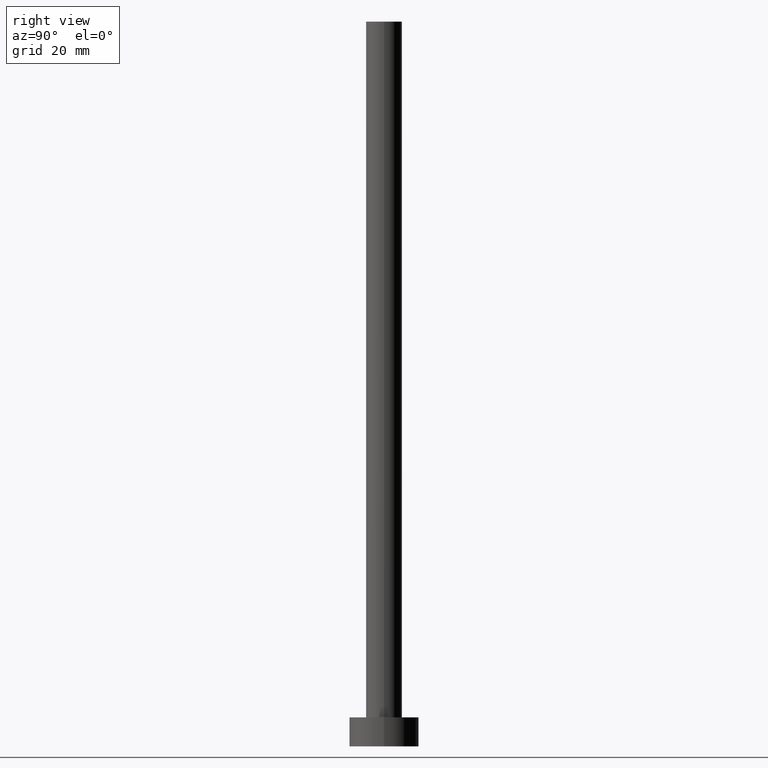
[diagram: clean part render]
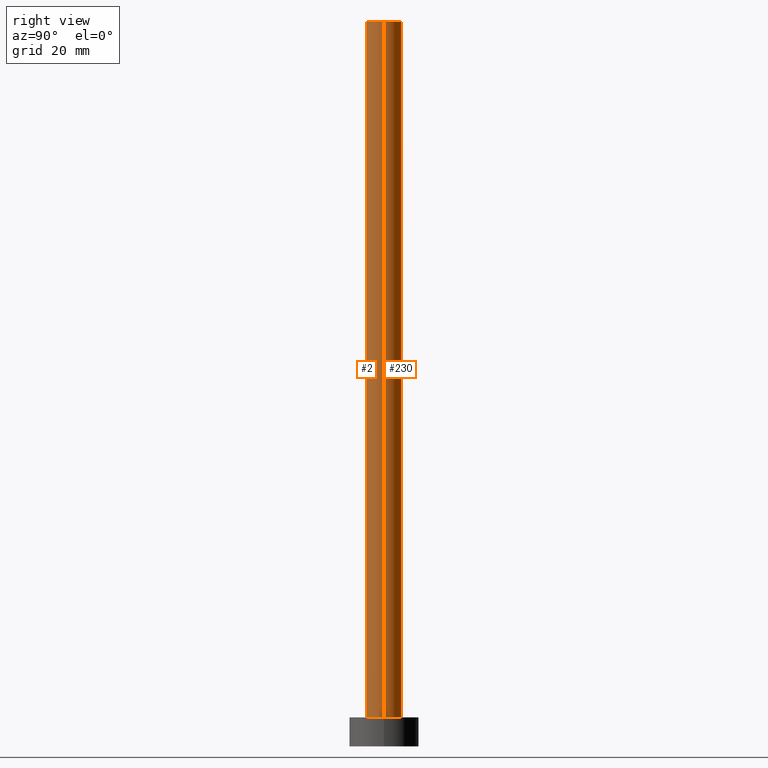
[diagram: same view with one multi-face feature highlighted, each face labeled with its STEP entity id]
A machine part, right view. The highlighted faces form ONE feature: a constant-radius fillet chain: 2 tangent blend faces with common blend radius 3.1 mm. The faces share edges in the B-rep.
Their STEP definitions:
[1] entity #230 (Cylinder):
#3 = DIRECTION ( 'NONE',  ( 1.000000000000000000, 0.000000000000000000, 0.000000000000000000 ) ) ;
#4 = CARTESIAN_POINT ( 'NONE',  ( -3.100000000000000089, 0.000000000000000000, 125.0000000000000000 ) ) ;
#16 = AXIS2_PLACEMENT_3D ( 'NONE', #182, #145, #3 ) ;
#22 = EDGE_CURVE ( 'NONE', #152, #255, #236, .T. ) ;
#41 = EDGE_LOOP ( 'NONE', ( #71, #206, #228, #121 ) ) ;
#46 = CARTESIAN_POINT ( 'NONE',  ( 3.100000000000000089, 3.796405077356794918E-16, 5.000000000000000000 ) ) ;
#47 = DIRECTION ( 'NONE',  ( 1.000000000000000000, 0.000000000000000000, 0.000000000000000000 ) ) ;
#48 = VECTOR ( 'NONE', #63, 1000.000000000000000 ) ;
#58 = AXIS2_PLACEMENT_3D ( 'NONE', #199, #126, #47 ) ;
#63 = DIRECTION ( 'NONE',  ( -0.000000000000000000, -0.000000000000000000, -1.000000000000000000 ) ) ;
#67 = DIRECTION ( 'NONE',  ( -0.000000000000000000, -0.000000000000000000, -1.000000000000000000 ) ) ;
#71 = ORIENTED_EDGE ( 'NONE', *, *, #22, .F. ) ;
#73 = FACE_OUTER_BOUND ( 'NONE', #41, .T. ) ;
#89 = LINE ( 'NONE', #242, #205 ) ;
#106 = LINE ( 'NONE', #4, #48 ) ;
#111 = DIRECTION ( 'NONE',  ( -0.000000000000000000, -0.000000000000000000, -1.000000000000000000 ) ) ;
#114 = EDGE_CURVE ( 'NONE', #118, #194, #128, .T. ) ;
#118 = VERTEX_POINT ( 'NONE', #46 ) ;
#121 = ORIENTED_EDGE ( 'NONE', *, *, #129, .F. ) ;
#126 = DIRECTION ( 'NONE',  ( 0.000000000000000000, 0.000000000000000000, 1.000000000000000000 ) ) ;
#128 = CIRCLE ( 'NONE', #16, 3.100000000000000089 ) ;
#129 = EDGE_CURVE ( 'NONE', #255, #194, #106, .T. ) ;
#132 = CYLINDRICAL_SURFACE ( 'NONE', #223, 3.100000000000000089 ) ;
#145 = DIRECTION ( 'NONE',  ( 0.000000000000000000, 0.000000000000000000, 1.000000000000000000 ) ) ;
#150 = CARTESIAN_POINT ( 'NONE',  ( -3.100000000000000089, 0.000000000000000000, 5.000000000000000000 ) ) ;
#152 = VERTEX_POINT ( 'NONE', #243 ) ;
#182 = CARTESIAN_POINT ( 'NONE',  ( 0.000000000000000000, 0.000000000000000000, 5.000000000000000000 ) ) ;
#187 = DIRECTION ( 'NONE',  ( -1.000000000000000000, 0.000000000000000000, 0.000000000000000000 ) ) ;
#188 = CARTESIAN_POINT ( 'NONE',  ( -3.100000000000000089, 0.000000000000000000, 125.0000000000000000 ) ) ;
#194 = VERTEX_POINT ( 'NONE', #150 ) ;
#199 = CARTESIAN_POINT ( 'NONE',  ( 0.000000000000000000, 0.000000000000000000, 125.0000000000000000 ) ) ;
#205 = VECTOR ( 'NONE', #67, 1000.000000000000000 ) ;
#206 = ORIENTED_EDGE ( 'NONE', *, *, #238, .T. ) ;
#208 = CARTESIAN_POINT ( 'NONE',  ( 0.000000000000000000, 0.000000000000000000, 125.0000000000000000 ) ) ;
#223 = AXIS2_PLACEMENT_3D ( 'NONE', #208, #111, #187 ) ;
#228 = ORIENTED_EDGE ( 'NONE', *, *, #114, .T. ) ;
#230 = ADVANCED_FACE ( 'NONE', ( #73 ), #132, .T. ) ;
#236 = CIRCLE ( 'NONE', #58, 3.100000000000000089 ) ;
#238 = EDGE_CURVE ( 'NONE', #152, #118, #89, .T. ) ;
#242 = CARTESIAN_POINT ( 'NONE',  ( 3.100000000000000089, 3.796405077356794918E-16, 125.0000000000000000 ) ) ;
#243 = CARTESIAN_POINT ( 'NONE',  ( 3.100000000000000089, 3.796405077356794918E-16, 125.0000000000000000 ) ) ;
#255 = VERTEX_POINT ( 'NONE', #188 ) ;
[2] entity #2 (Cylinder):
#2 = ADVANCED_FACE ( 'NONE', ( #131 ), #110, .T. ) ;
#4 = CARTESIAN_POINT ( 'NONE',  ( -3.100000000000000089, 0.000000000000000000, 125.0000000000000000 ) ) ;
#5 = DIRECTION ( 'NONE',  ( -0.000000000000000000, -0.000000000000000000, -1.000000000000000000 ) ) ;
#30 = DIRECTION ( 'NONE',  ( -1.000000000000000000, 0.000000000000000000, 0.000000000000000000 ) ) ;
#31 = CARTESIAN_POINT ( 'NONE',  ( 0.000000000000000000, 0.000000000000000000, 125.0000000000000000 ) ) ;
#32 = CIRCLE ( 'NONE', #97, 3.100000000000000089 ) ;
#46 = CARTESIAN_POINT ( 'NONE',  ( 3.100000000000000089, 3.796405077356794918E-16, 5.000000000000000000 ) ) ;
#48 = VECTOR ( 'NONE', #63, 1000.000000000000000 ) ;
#50 = CARTESIAN_POINT ( 'NONE',  ( 0.000000000000000000, 0.000000000000000000, 5.000000000000000000 ) ) ;
#63 = DIRECTION ( 'NONE',  ( -0.000000000000000000, -0.000000000000000000, -1.000000000000000000 ) ) ;
#67 = DIRECTION ( 'NONE',  ( -0.000000000000000000, -0.000000000000000000, -1.000000000000000000 ) ) ;
#77 = CIRCLE ( 'NONE', #221, 3.100000000000000089 ) ;
#78 = EDGE_CURVE ( 'NONE', #194, #118, #32, .T. ) ;
#85 = ORIENTED_EDGE ( 'NONE', *, *, #129, .T. ) ;
#89 = LINE ( 'NONE', #242, #205 ) ;
#95 = EDGE_LOOP ( 'NONE', ( #249, #213, #85, #204 ) ) ;
#97 = AXIS2_PLACEMENT_3D ( 'NONE', #50, #105, #166 ) ;
#105 = DIRECTION ( 'NONE',  ( 0.000000000000000000, 0.000000000000000000, 1.000000000000000000 ) ) ;
#106 = LINE ( 'NONE', #4, #48 ) ;
#109 = EDGE_CURVE ( 'NONE', #255, #152, #77, .T. ) ;
#110 = CYLINDRICAL_SURFACE ( 'NONE', #229, 3.100000000000000089 ) ;
#118 = VERTEX_POINT ( 'NONE', #46 ) ;
#124 = CARTESIAN_POINT ( 'NONE',  ( 0.000000000000000000, 0.000000000000000000, 125.0000000000000000 ) ) ;
#129 = EDGE_CURVE ( 'NONE', #255, #194, #106, .T. ) ;
#131 = FACE_OUTER_BOUND ( 'NONE', #95, .T. ) ;
#150 = CARTESIAN_POINT ( 'NONE',  ( -3.100000000000000089, 0.000000000000000000, 5.000000000000000000 ) ) ;
#152 = VERTEX_POINT ( 'NONE', #243 ) ;
#166 = DIRECTION ( 'NONE',  ( 1.000000000000000000, 0.000000000000000000, 0.000000000000000000 ) ) ;
#188 = CARTESIAN_POINT ( 'NONE',  ( -3.100000000000000089, 0.000000000000000000, 125.0000000000000000 ) ) ;
#194 = VERTEX_POINT ( 'NONE', #150 ) ;
#200 = DIRECTION ( 'NONE',  ( 0.000000000000000000, 0.000000000000000000, 1.000000000000000000 ) ) ;
#204 = ORIENTED_EDGE ( 'NONE', *, *, #78, .T. ) ;
#205 = VECTOR ( 'NONE', #67, 1000.000000000000000 ) ;
#213 = ORIENTED_EDGE ( 'NONE', *, *, #109, .F. ) ;
#221 = AXIS2_PLACEMENT_3D ( 'NONE', #124, #200, #222 ) ;
#222 = DIRECTION ( 'NONE',  ( 1.000000000000000000, 0.000000000000000000, 0.000000000000000000 ) ) ;
#229 = AXIS2_PLACEMENT_3D ( 'NONE', #31, #5, #30 ) ;
#238 = EDGE_CURVE ( 'NONE', #152, #118, #89, .T. ) ;
#242 = CARTESIAN_POINT ( 'NONE',  ( 3.100000000000000089, 3.796405077356794918E-16, 125.0000000000000000 ) ) ;
#243 = CARTESIAN_POINT ( 'NONE',  ( 3.100000000000000089, 3.796405077356794918E-16, 125.0000000000000000 ) ) ;
#249 = ORIENTED_EDGE ( 'NONE', *, *, #238, .F. ) ;
#255 = VERTEX_POINT ( 'NONE', #188 ) ;